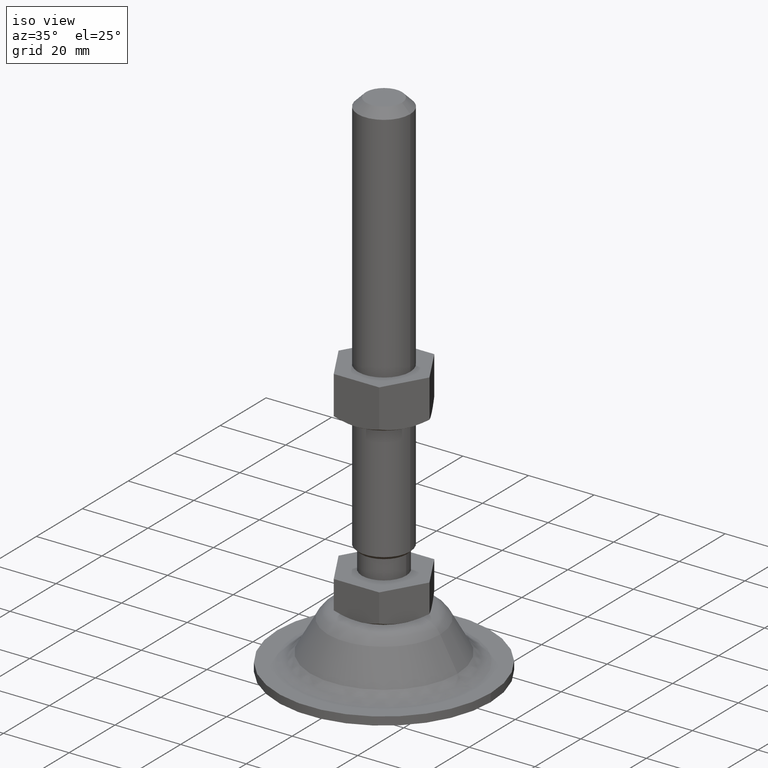
[diagram: clean part render]
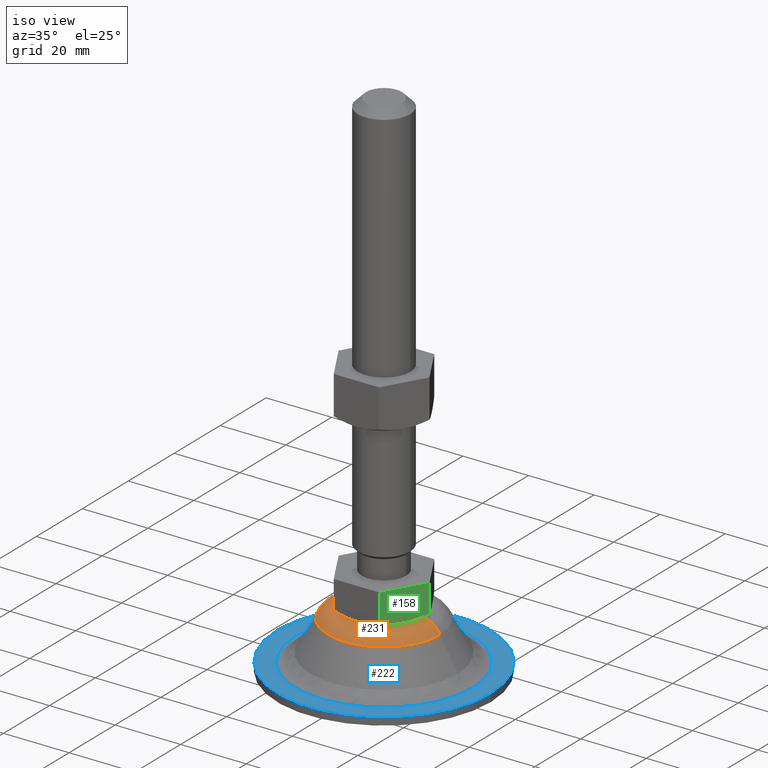
[diagram: same view with three faces highlighted in distinct colors, each labeled with its STEP entity id]
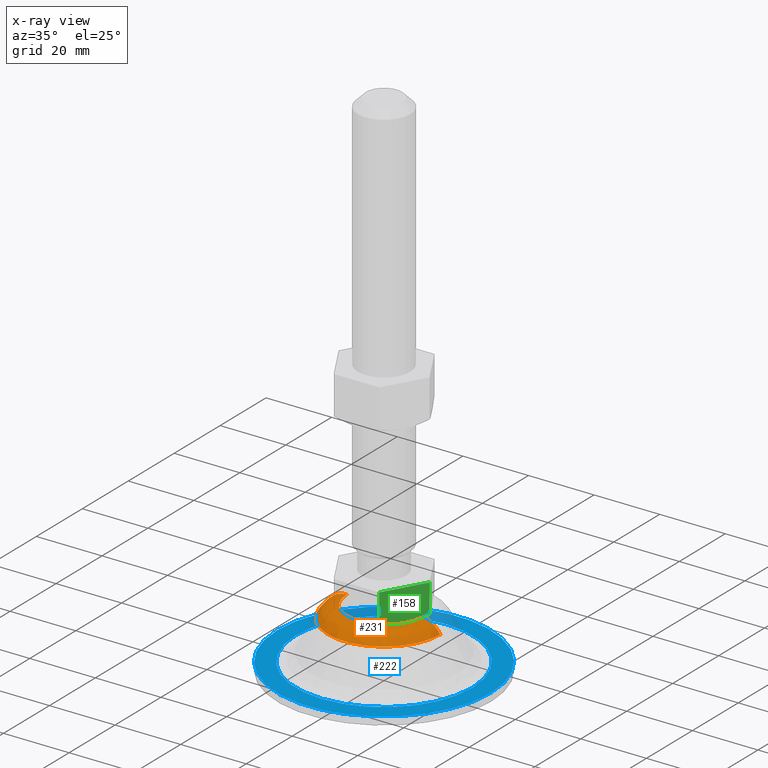
[diagram: x-ray of the same camera — body ghosted, the three highlighted faces saturated]
A machine part, iso view with three faces highlighted in distinct colors.
The next image is the same camera in x-ray (body ghosted, the three faces saturated) — at least one of them is partly hidden behind the body in this view.
Their STEP definitions:

[orange] entity #231 — the highlighted face is a freeform B-spline surface patch.
#231=ADVANCED_FACE('',(#1072),#1071,.T.);
#1071=( BOUNDED_SURFACE() B_SPLINE_SURFACE( 2,2,((#1741,#1742,#1743,#1744,#1745),(#1746,#1747,#1748,#1749,#1750),(#1751,#1752,#1753,#1754,#1755),(#1756,#1757,#1758,#1759,#1760),(#1761,#1762,#1763,#1764,#1765)), .UNSPECIFIED.,.F.,.F.,.F.) B_SPLINE_SURFACE_WITH_KNOTS((3,2,3),(3,2,3),(0.00000000000E+00,5.00000000000E-01,1.00000000000E+00),(0.00000000000E+00,5.00000000000E-01,1.00000000000E+00), .UNSPECIFIED. ) GEOMETRIC_REPRESENTATION_ITEM() RATIONAL_B_SPLINE_SURFACE(((1.00000000000E+00,8.62734385978E-01,1.00000000000E+00,8.62734385978E-01,1.00000000000E+00),(7.07106781187E-01,6.10045334688E-01,7.07106781187E-01,6.10045334688E-01,7.07106781187E-01),(1.00000000000E+00,8.62734385978E-01,1.00000000000E+00,8.62734385978E-01,1.00000000000E+00),(7.07106781187E-01,6.10045334688E-01,7.07106781187E-01,6.10045334688E-01,7.07106781187E-01),(1.00000000000E+00,8.62734385978E-01,1.00000000000E+00,8.62734385978E-01,1.00000000000E+00))) REPRESENTATION_ITEM('') SURFACE() );
#1072=FACE_OUTER_BOUND('',#1766,.T.);
#1741=CARTESIAN_POINT('',(5.45427675265E+00,-6.67934196685E-16,-1.34262376818E+01));
#1742=CARTESIAN_POINT('',(7.37306204939E+00,-9.02909863284E-16,-9.99999999988E+00));
#1743=CARTESIAN_POINT('',(1.13000000000E+01,-1.38380517983E-15,-9.99999999988E+00));
#1744=CARTESIAN_POINT('',(1.52269379507E+01,-1.86470049637E-15,-9.99999999988E+00));
#1745=CARTESIAN_POINT('',(1.71457232474E+01,-2.09967616297E-15,-1.34262376818E+01));
#1746=CARTESIAN_POINT('',(5.45427675265E+00,-5.45427675269E+00,-1.34262376818E+01));
#1747=CARTESIAN_POINT('',(7.37306204939E+00,-7.37306204942E+00,-9.99999999988E+00));
#1748=CARTESIAN_POINT('',(1.13000000000E+01,-1.13000000001E+01,-9.99999999988E+00));
#1749=CARTESIAN_POINT('',(1.52269379507E+01,-1.52269379507E+01,-9.99999999988E+00));
#1750=CARTESIAN_POINT('',(1.71457232474E+01,-1.71457232475E+01,-1.34262376818E+01));
#1751=CARTESIAN_POINT('',(-3.19470014897E-11,-5.45427675269E+00,-1.34262376818E+01));
#1752=CARTESIAN_POINT('',(-3.19471189736E-11,-7.37306204942E+00,-9.99999999988E+00));
#1753=CARTESIAN_POINT('',(-3.19473594133E-11,-1.13000000001E+01,-9.99999999988E+00));
#1754=CARTESIAN_POINT('',(-3.19475998530E-11,-1.52269379507E+01,-9.99999999988E+00));
#1755=CARTESIAN_POINT('',(-3.19477173370E-11,-1.71457232475E+01,-1.34262376818E+01));
#1756=CARTESIAN_POINT('',(-5.45427675272E+00,-5.45427675269E+00,-1.34262376818E+01));
#1757=CARTESIAN_POINT('',(-7.37306204945E+00,-7.37306204942E+00,-9.99999999988E+00));
#1758=CARTESIAN_POINT('',(-1.13000000001E+01,-1.13000000001E+01,-9.99999999988E+00));
#1759=CARTESIAN_POINT('',(-1.52269379508E+01,-1.52269379507E+01,-9.99999999988E+00));
#1760=CARTESIAN_POINT('',(-1.71457232475E+01,-1.71457232475E+01,-1.34262376818E+01));
#1761=CARTESIAN_POINT('',(-5.45427675272E+00,-2.20599995771E-20,-1.34262376818E+01));
#1762=CARTESIAN_POINT('',(-7.37306204945E+00,-2.98205890654E-20,-9.99999999988E+00));
#1763=CARTESIAN_POINT('',(-1.13000000001E+01,-4.57032172231E-20,-9.99999999988E+00));
#1764=CARTESIAN_POINT('',(-1.52269379508E+01,-6.15858453807E-20,-9.99999999988E+00));
#1765=CARTESIAN_POINT('',(-1.71457232475E+01,-6.93464348691E-20,-1.34262376818E+01));
#1766=EDGE_LOOP('',(#2261,#2262,#2263,#2264));
#2261=ORIENTED_EDGE('',*,*,#2489,.F.);
#2262=ORIENTED_EDGE('',*,*,#2490,.F.);
#2263=ORIENTED_EDGE('',*,*,#2469,.T.);
#2264=ORIENTED_EDGE('',*,*,#2491,.T.);
#2469=EDGE_CURVE('',#3673,#3674,#3675,.T.);
#2489=EDGE_CURVE('',#3805,#3806,#3807,.T.);
#2490=EDGE_CURVE('',#3673,#3805,#3813,.T.);
#2491=EDGE_CURVE('',#3674,#3806,#3819,.T.);
#3673=VERTEX_POINT('',#4717);
#3674=VERTEX_POINT('',#4718);
#3675=CIRCLE('',#4722,1.13000000001E+01);
#3805=VERTEX_POINT('',#4799);
#3806=VERTEX_POINT('',#4800);
#3807=CIRCLE('',#4804,1.71457232475E+01);
#3813=(BOUNDED_CURVE() B_SPLINE_CURVE(2,(#4805,#4806,#4807),.UNSPECIFIED.,.F.,.F.) B_SPLINE_CURVE_WITH_KNOTS((3,3),(5.00000000000E-01,1.00000000000E+00),.UNSPECIFIED.) CURVE() GEOMETRIC_REPRESENTATION_ITEM() RATIONAL_B_SPLINE_CURVE((1.00000000000E+00,8.62734385978E-01,1.00000000000E+00)) REPRESENTATION_ITEM('') );
#3819=(BOUNDED_CURVE() B_SPLINE_CURVE(3,(#4808,#4809,#4810,#4811,#4812),.UNSPECIFIED.,.F.,.F.) B_SPLINE_CURVE_WITH_KNOTS((4,1,4),(4.99999962690E-01,7.49999980048E-01,1.00000000000E+00),.UNSPECIFIED.) CURVE() GEOMETRIC_REPRESENTATION_ITEM() RATIONAL_B_SPLINE_CURVE((1.00000000000E+00,1.00000000000E+00,1.00000000000E+00,1.00000000000E+00,1.00000000000E+00)) REPRESENTATION_ITEM('') );
#4717=CARTESIAN_POINT('',(1.13000000001E+01,5.92118946467E-16,-9.99999999990E+00));
#4718=CARTESIAN_POINT('',(-1.13000000001E+01,0.00000000000E+00,-9.99999999990E+00));
#4719=CARTESIAN_POINT('',(-3.19460013998E-11,0.00000000000E+00,-9.99999999990E+00));
#4720=DIRECTION('',(-0.00000000000E+00,0.00000000000E+00,-1.00000000000E+00));
#4721=DIRECTION('',(-1.00000000000E+00,-1.22460635382E-16,0.00000000000E+00));
#4722=AXIS2_PLACEMENT_3D('',#4719,#4720,#4721);
#4799=CARTESIAN_POINT('',(1.71457232474E+01,1.18423789293E-15,-1.34262376818E+01));
#4800=CARTESIAN_POINT('',(-1.71457232475E+01,0.00000000000E+00,-1.34262376818E+01));
#4801=CARTESIAN_POINT('',(-3.19460013998E-11,0.00000000000E+00,-1.34262376818E+01));
#4802=DIRECTION('',(-0.00000000000E+00,0.00000000000E+00,-1.00000000000E+00));
#4803=DIRECTION('',(-1.00000000000E+00,-1.22460635382E-16,0.00000000000E+00));
#4804=AXIS2_PLACEMENT_3D('',#4801,#4802,#4803);
#4805=CARTESIAN_POINT('',(1.13000000000E+01,-1.38380517983E-15,-9.99999999988E+00));
#4806=CARTESIAN_POINT('',(1.52269379507E+01,-1.86470049637E-15,-9.99999999988E+00));
#4807=CARTESIAN_POINT('',(1.71457232474E+01,-2.09967616297E-15,-1.34262376818E+01));
#4808=CARTESIAN_POINT('',(-1.12999994945E+01,1.18423787301E-15,-9.99999999988E+00));
#4809=CARTESIAN_POINT('',(-1.24761741705E+01,1.44547037489E-15,-9.99753674578E+00));
#4810=CARTESIAN_POINT('',(-1.48511370646E+01,2.17481937750E-15,-1.06411773889E+01));
#4811=CARTESIAN_POINT('',(-1.65731684131E+01,3.10542438205E-15,-1.23988264077E+01));
#4812=CARTESIAN_POINT('',(-1.71457232475E+01,3.55271367880E-15,-1.34262376818E+01));

[blue] entity #222 — the highlighted planar face has unit normal (0, 0, -1).
#222=ADVANCED_FACE('',(#981,#982),#980,.F.);
#980=PLANE('',#1602);
#981=FACE_OUTER_BOUND('',#1603,.T.);
#982=FACE_BOUND('',#1604,.T.);
#1599=CARTESIAN_POINT('',(7.47500000001E+01,-6.62916512461E+01,-2.54999999999E+01));
#1600=DIRECTION('',(-0.00000000000E+00,0.00000000000E+00,-1.00000000000E+00));
#1601=DIRECTION('',(-1.00000000000E+00,0.00000000000E+00,0.00000000000E+00));
#1602=AXIS2_PLACEMENT_3D('',#1599,#1600,#1601);
#1603=EDGE_LOOP('',(#2225,#2226));
#1604=EDGE_LOOP('',(#2227,#2228));
#2225=ORIENTED_EDGE('',*,*,#2473,.F.);
#2226=ORIENTED_EDGE('',*,*,#2474,.F.);
#2227=ORIENTED_EDGE('',*,*,#2475,.T.);
#2228=ORIENTED_EDGE('',*,*,#2476,.T.);
#2473=EDGE_CURVE('',#3701,#3702,#3703,.T.);
#2474=EDGE_CURVE('',#3702,#3701,#3709,.T.);
#2475=EDGE_CURVE('',#3715,#3716,#3717,.T.);
#2476=EDGE_CURVE('',#3716,#3715,#3723,.T.);
#3701=VERTEX_POINT('',#4737);
#3702=VERTEX_POINT('',#4738);
#3703=CIRCLE('',#4742,3.25000000000E+01);
#3709=CIRCLE('',#4746,3.25000000000E+01);
#3715=VERTEX_POINT('',#4747);
#3716=VERTEX_POINT('',#4748);
#3717=CIRCLE('',#4752,2.69551277699E+01);
#3723=CIRCLE('',#4756,2.69551277699E+01);
#4737=CARTESIAN_POINT('',(3.25000000000E+01,6.98700356831E-14,-2.55000000000E+01));
#4738=CARTESIAN_POINT('',(-3.25000000001E+01,0.00000000000E+00,-2.55000000000E+01));
#4739=CARTESIAN_POINT('',(-3.19460013998E-11,0.00000000000E+00,-2.55000000000E+01));
#4740=DIRECTION('',(-0.00000000000E+00,0.00000000000E+00,-1.00000000000E+00));
#4741=DIRECTION('',(-1.00000000000E+00,-1.22460635382E-16,0.00000000000E+00));
#4742=AXIS2_PLACEMENT_3D('',#4739,#4740,#4741);
#4743=CARTESIAN_POINT('',(-3.19460013998E-11,0.00000000000E+00,-2.55000000000E+01));
#4744=DIRECTION('',(-0.00000000000E+00,0.00000000000E+00,-1.00000000000E+00));
#4745=DIRECTION('',(-1.00000000000E+00,-1.22460635382E-16,0.00000000000E+00));
#4746=AXIS2_PLACEMENT_3D('',#4743,#4744,#4745);
#4747=CARTESIAN_POINT('',(-2.69551277700E+01,0.00000000000E+00,-2.54999999999E+01));
#4748=CARTESIAN_POINT('',(2.69551277699E+01,0.00000000000E+00,-2.54999999999E+01));
#4749=CARTESIAN_POINT('',(-3.19460013998E-11,0.00000000000E+00,-2.54999999999E+01));
#4750=DIRECTION('',(-0.00000000000E+00,0.00000000000E+00,-1.00000000000E+00));
#4751=DIRECTION('',(-1.00000000000E+00,-1.22460635382E-16,0.00000000000E+00));
#4752=AXIS2_PLACEMENT_3D('',#4749,#4750,#4751);
#4753=CARTESIAN_POINT('',(-3.19460013998E-11,0.00000000000E+00,-2.54999999999E+01));
#4754=DIRECTION('',(-0.00000000000E+00,0.00000000000E+00,-1.00000000000E+00));
#4755=DIRECTION('',(-1.00000000000E+00,-1.22460635382E-16,0.00000000000E+00));
#4756=AXIS2_PLACEMENT_3D('',#4753,#4754,#4755);

[green] entity #158 — the highlighted planar face has unit normal (0.866, -0.5, 0).
#158=ADVANCED_FACE('',(#334),#333,.T.);
#333=PLANE('',#1203);
#334=FACE_OUTER_BOUND('',#1204,.T.);
#1200=CARTESIAN_POINT('',(6.23538290725E+00,-1.32000000000E+01,-1.06828654521E+01));
#1201=DIRECTION('',(8.66025403784E-01,-5.00000000000E-01,0.00000000000E+00));
#1202=DIRECTION('',(5.00000000000E-01,8.66025403784E-01,0.00000000000E+00));
#1203=AXIS2_PLACEMENT_3D('',#1200,#1201,#1202);
#1204=EDGE_LOOP('',(#1933,#1934,#1935,#1936));
#1933=ORIENTED_EDGE('',*,*,#2345,.F.);
#1934=ORIENTED_EDGE('',*,*,#2299,.T.);
#1935=ORIENTED_EDGE('',*,*,#2303,.F.);
#1936=ORIENTED_EDGE('',*,*,#2343,.F.);
#2299=EDGE_CURVE('',#2529,#2536,#2543,.T.);
#2303=EDGE_CURVE('',#2563,#2536,#2570,.T.);
#2343=EDGE_CURVE('',#2842,#2563,#2850,.T.);
#2345=EDGE_CURVE('',#2529,#2842,#2862,.T.);
#2529=VERTEX_POINT('',#3906);
#2536=VERTEX_POINT('',#3919);
#2543=LINE('',#3923,#3924);
#2563=VERTEX_POINT('',#3934);
#2570=LINE('',#3938,#3939);
#2842=VERTEX_POINT('',#4120);
#2850=LINE('',#4134,#4135);
#2862=(BOUNDED_CURVE() B_SPLINE_CURVE(3,(#4140,#4141,#4142,#4143,#4144,#4145,#4146,#4147,#4148,#4149,#4150,#4151),.UNSPECIFIED.,.F.,.F.) B_SPLINE_CURVE_WITH_KNOTS((4,2,2,2,2,4),(2.38072964553E-07,3.49878844387E-03,6.99733881478E-03,8.74661400024E-03,1.04958891857E-02,1.39944395566E-02),.UNSPECIFIED.) CURVE() GEOMETRIC_REPRESENTATION_ITEM() RATIONAL_B_SPLINE_CURVE((1.00000000000E+00,1.00000000000E+00,1.00000000000E+00,1.00000000000E+00,1.00000000000E+00,1.00000000000E+00,1.00000000000E+00,1.00000000000E+00,1.00000000000E+00,1.00000000000E+00,1.00000000000E+00,1.00000000000E+00)) REPRESENTATION_ITEM('') );
#3906=CARTESIAN_POINT('',(1.38564064606E+01,0.00000000000E+00,-8.63952809570E+00));
#3919=CARTESIAN_POINT('',(1.38564064606E+01,0.00000000000E+00,-2.99760216649E-11));
#3923=CARTESIAN_POINT('',(1.38564064606E+01,0.00000000000E+00,-8.63952809570E+00));
#3924=VECTOR('',#3925,8.63952809567E+00);
#3925=DIRECTION('',(0.00000000000E+00,0.00000000000E+00,1.00000000000E+00));
#3934=CARTESIAN_POINT('',(6.92820323028E+00,-1.20000000000E+01,-2.99760216649E-11));
#3938=CARTESIAN_POINT('',(6.92820323028E+00,-1.20000000000E+01,-3.00133251585E-11));
#3939=VECTOR('',#3940,1.38564064606E+01);
#3940=DIRECTION('',(5.00000000000E-01,8.66025403784E-01,0.00000000000E+00));
#4120=CARTESIAN_POINT('',(6.92820323028E+00,-1.20000000000E+01,-8.63952809571E+00));
#4134=CARTESIAN_POINT('',(6.92820323028E+00,-1.20000000000E+01,-8.63952809571E+00));
#4135=VECTOR('',#4136,8.63952809568E+00);
#4136=DIRECTION('',(0.00000000000E+00,0.00000000000E+00,1.00000000000E+00));
#4140=CARTESIAN_POINT('',(1.38564064606E+01,3.44515836491E-14,-8.63952809570E+00));
#4141=CARTESIAN_POINT('',(1.32907843462E+01,-9.79686239952E-01,-8.96609017569E+00));
#4142=CARTESIAN_POINT('',(1.27210384436E+01,-1.96651509061E+00,-9.23523645596E+00));
#4143=CARTESIAN_POINT('',(1.15696643758E+01,-3.96075347464E+00,-9.60809141870E+00));
#4144=CARTESIAN_POINT('',(1.09879478760E+01,-4.96831600782E+00,-9.71057021391E+00));
#4145=CARTESIAN_POINT('',(1.01044134371E+01,-6.49864254620E+00,-9.71169586554E+00));
#4146=CARTESIAN_POINT('',(9.80851593347E+00,-7.01115205639E+00,-9.68664379860E+00));
#4147=CARTESIAN_POINT('',(9.22319950476E+00,-8.02494984941E+00,-9.58895385521E+00));
#4148=CARTESIAN_POINT('',(8.93250363776E+00,-8.52844986061E+00,-9.51641512994E+00));
#4149=CARTESIAN_POINT('',(8.06559147654E+00,-1.00299857695E+01,-9.23630971390E+00));
#4150=CARTESIAN_POINT('',(7.49453045604E+00,-1.10190924713E+01,-8.96649727195E+00));
#4151=CARTESIAN_POINT('',(6.92820323028E+00,-1.20000000000E+01,-8.63952809571E+00));